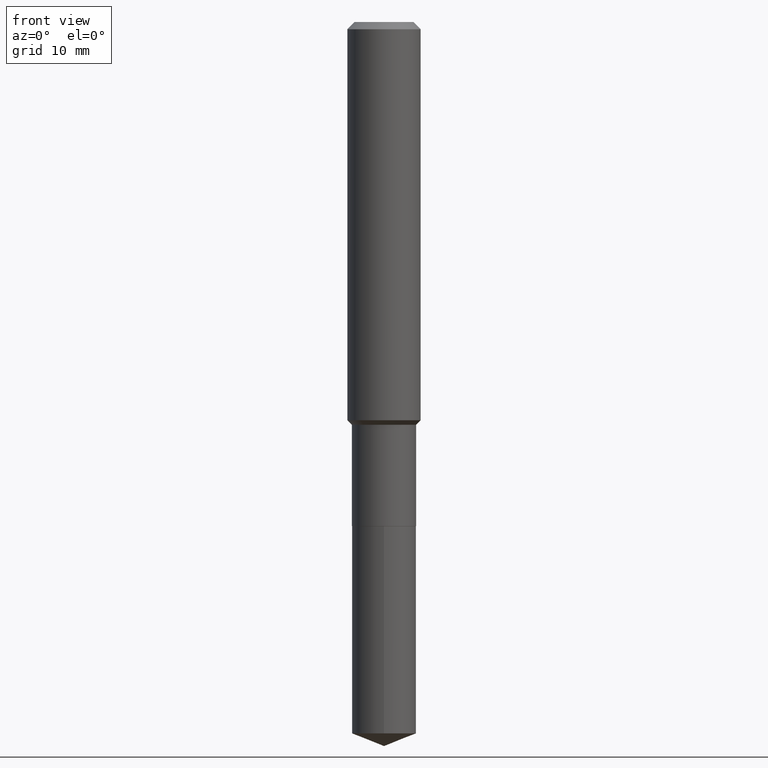
[diagram: clean part render]
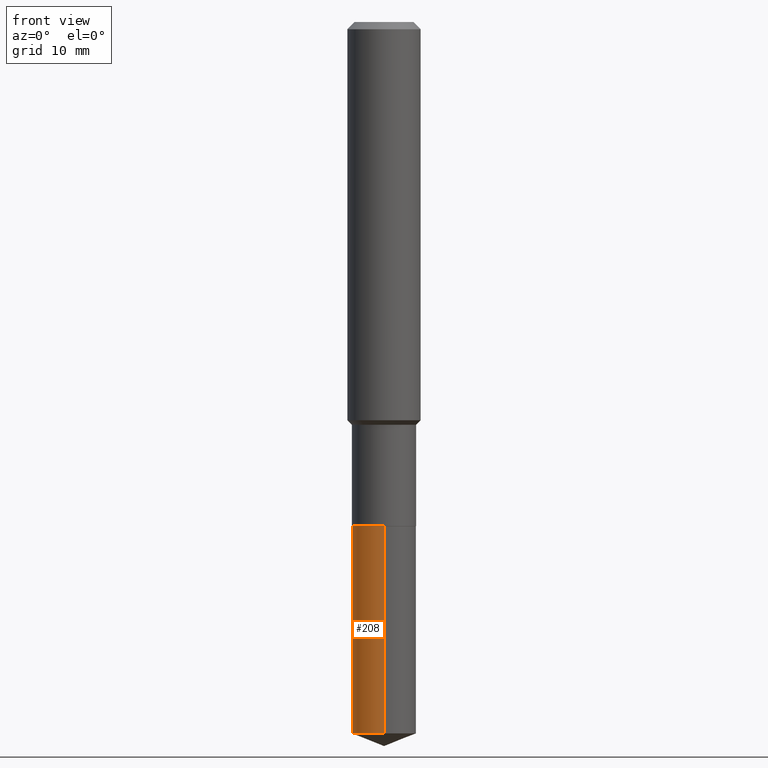
[diagram: same view with one face highlighted and labeled with its STEP entity id]
A machine part, front view. The second image highlights one B-rep face of the part: STEP entity #208.
In plain terms, the highlighted cylindrical surface (edge-blend (fillet) strip) has radius 3.5001 mm, axis along (-0, 0, 1).
Its self-contained STEP definition (entity closure, byte-faithful):
#12 = CARTESIAN_POINT ( 'NONE',  ( 9.791278898774930393E-16, 0.1377999999999894032, -3.055919136460262475 ) ) ;
#18 = ORIENTED_EDGE ( 'NONE', *, *, #304, .T. ) ;
#31 = EDGE_CURVE ( 'NONE', #96, #87, #428, .T. ) ;
#35 = VECTOR ( 'NONE', #73, 39.37007874015748143 ) ;
#37 = DIRECTION ( 'NONE',  ( -2.445321399674212677E-29, 3.491692433356646244E-15, 1.000000000000000000 ) ) ;
#44 = AXIS2_PLACEMENT_3D ( 'NONE', #223, #452, #224 ) ;
#65 = ORIENTED_EDGE ( 'NONE', *, *, #271, .F. ) ;
#73 = DIRECTION ( 'NONE',  ( -2.445321399674212397E-29, 3.491692433356646639E-15, 1.000000000000000000 ) ) ;
#87 = VERTEX_POINT ( 'NONE', #354 ) ;
#96 = VERTEX_POINT ( 'NONE', #137 ) ;
#107 = AXIS2_PLACEMENT_3D ( 'NONE', #189, #37, #345 ) ;
#137 = CARTESIAN_POINT ( 'NONE',  ( -9.622522569850931268E-16, -0.1378000000000107195, -3.055919136460261587 ) ) ;
#141 = VERTEX_POINT ( 'NONE', #12 ) ;
#189 = CARTESIAN_POINT ( 'NONE',  ( 5.295173606032675561E-29, -7.560104542997063911E-15, -2.165299999999999780 ) ) ;
#202 = CARTESIAN_POINT ( 'NONE',  ( 7.473023639378323914E-29, -1.066987264277799052E-14, -3.055919136460262031 ) ) ;
#208 = ADVANCED_FACE ( 'NONE', ( #416 ), #413, .T. ) ;
#219 = EDGE_CURVE ( 'NONE', #261, #87, #389, .T. ) ;
#223 = CARTESIAN_POINT ( 'NONE',  ( 5.295173606032675561E-29, -7.560104542997063911E-15, -2.165299999999999780 ) ) ;
#224 = DIRECTION ( 'NONE',  ( -6.982962677686265922E-15, -1.000000000000000000, 3.964946289788480896E-15 ) ) ;
#225 = VECTOR ( 'NONE', #235, 39.37007874015748143 ) ;
#227 = LINE ( 'NONE', #443, #35 ) ;
#235 = DIRECTION ( 'NONE',  ( -2.445321399674212397E-29, 3.491692433356646639E-15, 1.000000000000000000 ) ) ;
#248 = EDGE_LOOP ( 'NONE', ( #65, #18, #449, #285 ) ) ;
#261 = VERTEX_POINT ( 'NONE', #417 ) ;
#271 = EDGE_CURVE ( 'NONE', #141, #261, #227, .T. ) ;
#280 = CARTESIAN_POINT ( 'NONE',  ( -9.622522569851146233E-16, -0.1378000000000075831, -2.165299999999999336 ) ) ;
#285 = ORIENTED_EDGE ( 'NONE', *, *, #219, .F. ) ;
#304 = EDGE_CURVE ( 'NONE', #141, #96, #456, .T. ) ;
#314 = DIRECTION ( 'NONE',  ( -2.445321399674212677E-29, 3.491692433356646244E-15, 1.000000000000000000 ) ) ;
#334 = DIRECTION ( 'NONE',  ( -6.982962677686265922E-15, -1.000000000000000000, 3.964946289788480896E-15 ) ) ;
#345 = DIRECTION ( 'NONE',  ( -6.982962677686265922E-15, -1.000000000000000000, 3.964946289788480896E-15 ) ) ;
#354 = CARTESIAN_POINT ( 'NONE',  ( -9.622522569851146233E-16, -0.1378000000000075831, -2.165299999999999336 ) ) ;
#389 = CIRCLE ( 'NONE', #107, 0.1378000000000000058 ) ;
#413 = CYLINDRICAL_SURFACE ( 'NONE', #44, 0.1378000000000000058 ) ;
#416 = FACE_OUTER_BOUND ( 'NONE', #248, .T. ) ;
#417 = CARTESIAN_POINT ( 'NONE',  ( 9.791278898774928420E-16, 0.1377999999999924563, -2.165300000000000669 ) ) ;
#428 = LINE ( 'NONE', #280, #225 ) ;
#443 = CARTESIAN_POINT ( 'NONE',  ( 9.791278898774709511E-16, 0.1377999999999924563, -2.165300000000000669 ) ) ;
#449 = ORIENTED_EDGE ( 'NONE', *, *, #31, .T. ) ;
#452 = DIRECTION ( 'NONE',  ( -2.445321399674212677E-29, 3.491692433356646244E-15, 1.000000000000000000 ) ) ;
#456 = CIRCLE ( 'NONE', #463, 0.1378000000000000058 ) ;
#463 = AXIS2_PLACEMENT_3D ( 'NONE', #202, #314, #334 ) ;